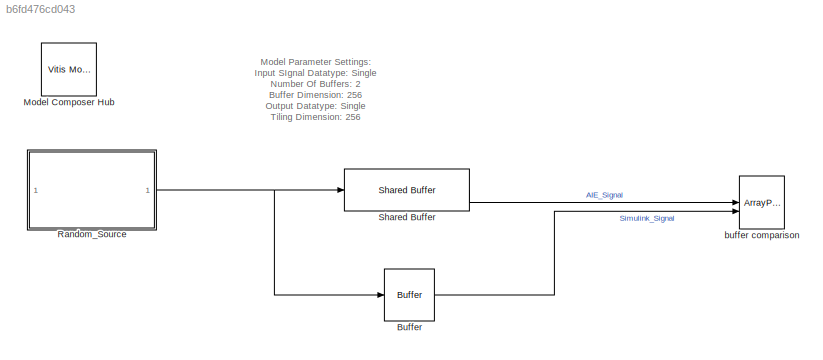
MODEL slx_b6fd476cd043
KIND model
CONFIG AbsTol = auto
CONFIG EnableMultiTasking = off
CONFIG FixedStep = auto
CONFIG MaxStep = auto
CONFIG MinStep = auto
CONFIG RelTol = 1e-3
CONFIG SampleTimeConstraint = Unconstrained
CONFIG SolverName = VariableStepAuto
CONFIG StartTime = 0.0
CONFIG StopTime = 2
BLOCK [Buffer] Buffer
  N = 256
  OutputFrames = off
BLOCK [Reference] Model Composer Hub  REF=vmcUtilities/Vitis Model Composer Hub
  SourceBlock = vmcUtilities/Vitis Model Composer Hub
  SourceType = VMC Hub
  Tag = genX
  UserDataPersistent = on
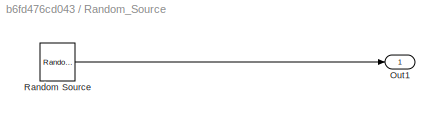
BLOCK [SubSystem] Random_Source
BLOCK [Outport] Random_Source/Out1
BLOCK [Reference] Random_Source/Random Source  REF=dspobslib/Random
Source
  SourceBlock = dspobslib/Random\nSource
  SourceType = Random Source Obsolete
  UserDataPersistent = on
BLOCK [Reference] Shared Buffer  REF=aieBasic/Shared Buffer
  SourceBlock = aieBasic/Shared Buffer
  SourceType = Shared Buffer
BLOCK [ArrayPlot] buffer comparison
  DefaultConfigurationName = dsp.scopes.ArrayPlotBlockSpecification
  GraphicalSettings = {"Style":{"BackgroundColor":[0.15686274509803921,0.15686274509803921,0.15686274509803921],"AxesColor":[0,0,0],"LabelsColor":[0.68627450980392157,0.68627450980392157,0.68627450980392157],"PreserveColors":false,"Visible":[true,true],"LineStyle":["-","-"],"LineColor":[[0.30196078431372547,0.74509803921568629,0.93333333333333335],[1,1,0]],"LineWidth":[1,1.5],"Marker":["none","none"],"FontSize":"small"...<+507ch>
  NumInputPorts = 2
  PlotType = Line
  ScopeFrameLocation = window
  ShowLegend = on
  Visible = on
  WasSavedAsWebScope = on
  WindowPosition = [4.000000,6.000000,1274.000000,655.000000,]
  YLimits = [-0.0933,0.0949]
ANNOTATION (root): Model Parameter Settings: Input SIgnal Datatype: Single Number Of Buffers: 2 Buffer Dimension: 256 Output Datatype: Single Tiling Dimension: 256 Offset: 0
LINE Buffer:1 -> buffer comparison:2
LINE Random_Source/Random Source:1 -> Random_Source/Out1:1
NET Random_Source:1 -> Buffer:1, Shared Buffer:1
LINE Shared Buffer:1 -> buffer comparison:1
note: NET lines group one-source signal fan-out (src -> all destinations, sorted); 1:1 wires keep LINE
